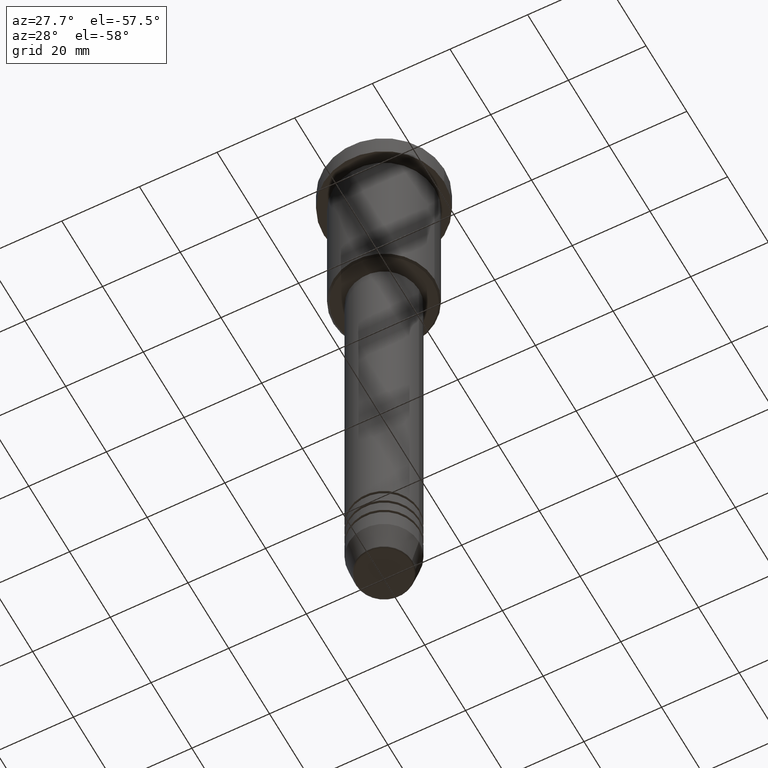
[diagram: clean part render]
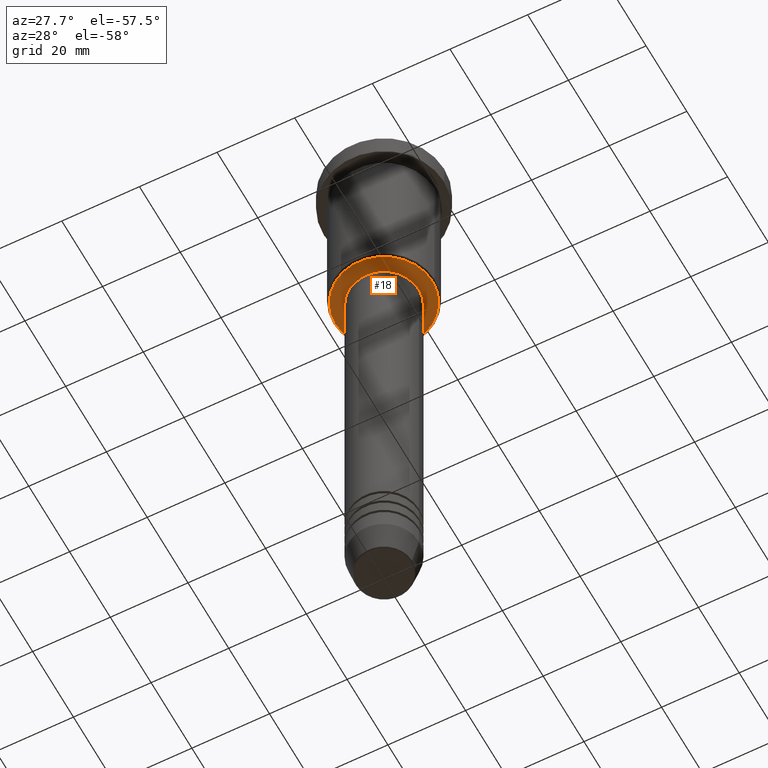
[diagram: same view with one face highlighted and labeled with its STEP entity id]
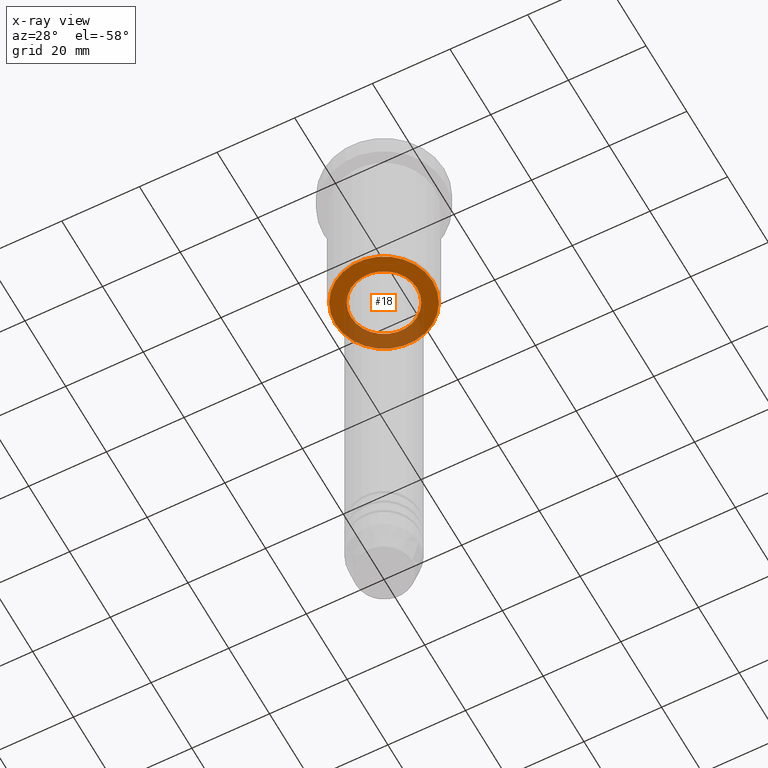
[diagram: x-ray of the same camera — body ghosted, the highlighted face saturated]
A machine part, auxiliary view. The second image highlights one B-rep face of the part: STEP entity #18.
The next image is the same camera in x-ray: the body ghosted, the highlighted face saturated — about 30% of this face is hidden behind the body in this view.
In plain terms, the highlighted planar face has unit normal (0, 0, -1).
Its self-contained STEP definition (entity closure, byte-faithful):
#6 = EDGE_CURVE ( 'NONE', #592, #887, #775, .T. ) ;
#7 = AXIS2_PLACEMENT_3D ( 'NONE', #34, #768, #513 ) ;
#18 = ADVANCED_FACE ( 'NONE', ( #1047, #232 ), #146, .T. ) ;
#20 = DIRECTION ( 'NONE',  ( -1.000000000000000000, 0.000000000000000000, -0.000000000000000000 ) ) ;
#34 = CARTESIAN_POINT ( 'NONE',  ( 0.000000000000000000, 0.000000000000000000, -46.00000000000000711 ) ) ;
#44 = AXIS2_PLACEMENT_3D ( 'NONE', #219, #845, #20 ) ;
#47 = CIRCLE ( 'NONE', #658, 12.49999999999999645 ) ;
#119 = ORIENTED_EDGE ( 'NONE', *, *, #354, .T. ) ;
#146 = PLANE ( 'NONE',  #44 ) ;
#170 = DIRECTION ( 'NONE',  ( -0.000000000000000000, -0.000000000000000000, 1.000000000000000000 ) ) ;
#219 = CARTESIAN_POINT ( 'NONE',  ( 0.000000000000000000, 13.00000000000000000, -46.00000000000001421 ) ) ;
#232 = FACE_BOUND ( 'NONE', #266, .T. ) ;
#266 = EDGE_LOOP ( 'NONE', ( #119, #825 ) ) ;
#268 = CIRCLE ( 'NONE', #371, 12.49999999999999645 ) ;
#284 = DIRECTION ( 'NONE',  ( -1.000000000000000000, 0.000000000000000000, 0.000000000000000000 ) ) ;
#288 = AXIS2_PLACEMENT_3D ( 'NONE', #997, #170, #1104 ) ;
#339 = EDGE_LOOP ( 'NONE', ( #1080, #363 ) ) ;
#354 = EDGE_CURVE ( 'NONE', #887, #592, #438, .T. ) ;
#363 = ORIENTED_EDGE ( 'NONE', *, *, #630, .T. ) ;
#371 = AXIS2_PLACEMENT_3D ( 'NONE', #468, #1107, #464 ) ;
#438 = CIRCLE ( 'NONE', #288, 8.500000000000000000 ) ;
#451 = EDGE_CURVE ( 'NONE', #882, #946, #47, .T. ) ;
#464 = DIRECTION ( 'NONE',  ( -1.000000000000000000, 0.000000000000000000, 0.000000000000000000 ) ) ;
#468 = CARTESIAN_POINT ( 'NONE',  ( 0.000000000000000000, 0.000000000000000000, -46.00000000000001421 ) ) ;
#496 = DIRECTION ( 'NONE',  ( 0.000000000000000000, 0.000000000000000000, -1.000000000000000000 ) ) ;
#508 = CARTESIAN_POINT ( 'NONE',  ( 0.000000000000000000, 0.000000000000000000, -46.00000000000001421 ) ) ;
#513 = DIRECTION ( 'NONE',  ( 1.000000000000000000, 0.000000000000000000, 0.000000000000000000 ) ) ;
#525 = CARTESIAN_POINT ( 'NONE',  ( 8.500000000000000000, 0.000000000000000000, -46.00000000000000711 ) ) ;
#592 = VERTEX_POINT ( 'NONE', #1082 ) ;
#630 = EDGE_CURVE ( 'NONE', #946, #882, #268, .T. ) ;
#658 = AXIS2_PLACEMENT_3D ( 'NONE', #508, #496, #284 ) ;
#768 = DIRECTION ( 'NONE',  ( -0.000000000000000000, -0.000000000000000000, 1.000000000000000000 ) ) ;
#775 = CIRCLE ( 'NONE', #7, 8.500000000000000000 ) ;
#825 = ORIENTED_EDGE ( 'NONE', *, *, #6, .T. ) ;
#841 = CARTESIAN_POINT ( 'NONE',  ( 12.49999999999999645, 0.000000000000000000, -46.00000000000001421 ) ) ;
#845 = DIRECTION ( 'NONE',  ( 0.000000000000000000, 0.000000000000000000, -1.000000000000000000 ) ) ;
#859 = CARTESIAN_POINT ( 'NONE',  ( -12.49999999999999645, 1.561424668912875308E-15, -46.00000000000001421 ) ) ;
#882 = VERTEX_POINT ( 'NONE', #841 ) ;
#887 = VERTEX_POINT ( 'NONE', #525 ) ;
#946 = VERTEX_POINT ( 'NONE', #859 ) ;
#997 = CARTESIAN_POINT ( 'NONE',  ( 0.000000000000000000, 0.000000000000000000, -46.00000000000000711 ) ) ;
#1047 = FACE_OUTER_BOUND ( 'NONE', #339, .T. ) ;
#1080 = ORIENTED_EDGE ( 'NONE', *, *, #451, .T. ) ;
#1082 = CARTESIAN_POINT ( 'NONE',  ( -8.500000000000000000, 1.040949779275250140E-15, -46.00000000000000711 ) ) ;
#1104 = DIRECTION ( 'NONE',  ( 1.000000000000000000, 0.000000000000000000, 0.000000000000000000 ) ) ;
#1107 = DIRECTION ( 'NONE',  ( 0.000000000000000000, 0.000000000000000000, -1.000000000000000000 ) ) ;